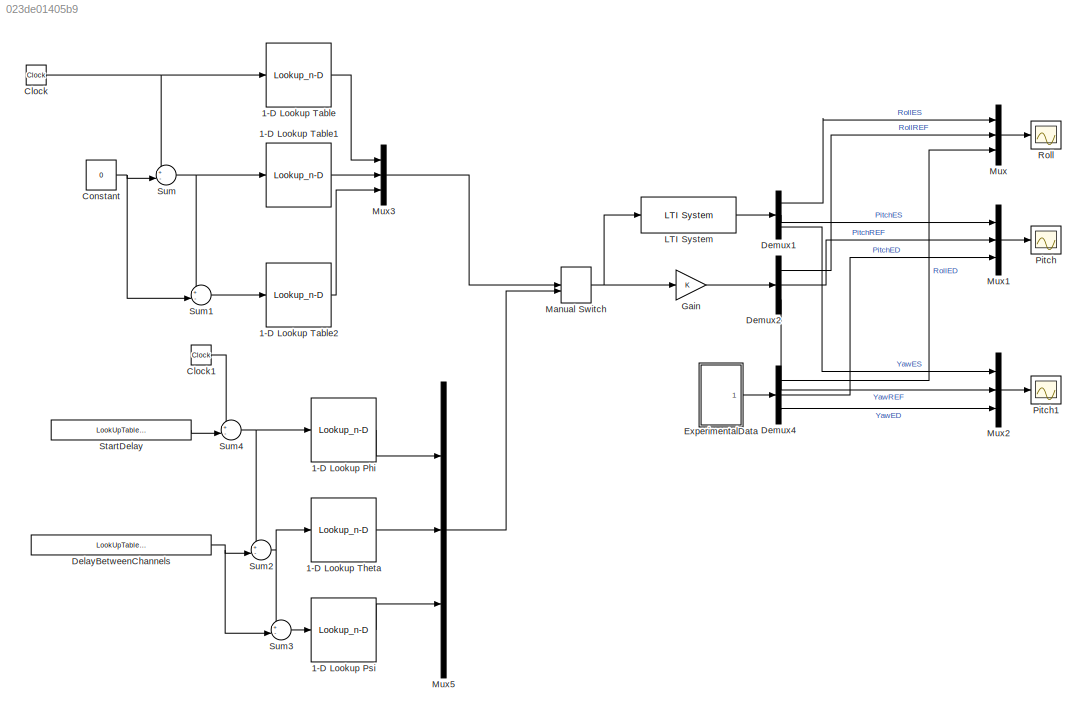
MODEL slx_023de01405b9
KIND model
CONFIG AbsTol = auto
CONFIG EnableMultiTasking = off
CONFIG FixedStep = .001
CONFIG MaxStep = auto
CONFIG MinStep = auto
CONFIG RelTol = 1e-3
CONFIG SampleTimeConstraint = Unconstrained
CONFIG Solver = ode5
CONFIG SolverName = ode5
CONFIG StartTime = 0.0
CONFIG StopTime = 20
BLOCK [Lookup_n-D] 1-D Lookup Phi
  BreakpointsForDimension1 = [0:length(TimeRPY)-1+20+20]*data.Ts
  ExtrapMethod = Cubic spline
  InternalRulePriority = Speed
  InterpMethod = Cubic spline
  NumberOfTableDimensions = 1
  Ports = [1, 1]
  RndMeth = Simplest
  Table = [zeros(20,1);data.InputData(:,1);zeros(20,1)]
BLOCK [Lookup_n-D] 1-D Lookup Psi
  BreakpointsForDimension1 = [0:length(TimeRPY)-1+20+20]*data.Ts
  ExtrapMethod = Cubic spline
  InternalRulePriority = Speed
  InterpMethod = Cubic spline
  NumberOfTableDimensions = 1
  Ports = [1, 1]
  RndMeth = Simplest
  Table = [data.InputData(1,3)*ones(20,1);data.InputData(:,3);data.InputData(end,3)*ones(20,1)]
BLOCK [Lookup_n-D] 1-D Lookup Table
  BreakpointsForDimension1 = [0:length(TimeRPY)-1+20+20]*data.Ts
  ExtrapMethod = Cubic spline
  InternalRulePriority = Speed
  InterpMethod = Cubic spline
  NumberOfTableDimensions = 1
  Ports = [1, 1]
  RndMeth = Simplest
  Table = [zeros(20,1);data.InputData(:,1);zeros(20,1)]
BLOCK [Lookup_n-D] 1-D Lookup Table1
  BreakpointsForDimension1 = [0:length(TimeRPY)-1+20+20]*data.Ts
  ExtrapMethod = Cubic spline
  InternalRulePriority = Speed
  InterpMethod = Cubic spline
  NumberOfTableDimensions = 1
  Ports = [1, 1]
  RndMeth = Simplest
  Table = [zeros(20,1);data.InputData(:,2);zeros(20,1)]
BLOCK [Lookup_n-D] 1-D Lookup Table2
  BreakpointsForDimension1 = [0:length(TimeRPY)-1+20+20]*data.Ts
  ExtrapMethod = Cubic spline
  InternalRulePriority = Speed
  InterpMethod = Cubic spline
  NumberOfTableDimensions = 1
  Ports = [1, 1]
  RndMeth = Simplest
  Table = [data.InputData(1,3)*ones(20,1);data.InputData(:,3);data.InputData(end,3)*ones(20,1)]
BLOCK [Lookup_n-D] 1-D Lookup Theta
  BreakpointsForDimension1 = [0:length(TimeRPY)-1+20+20]*data.Ts
  ExtrapMethod = Cubic spline
  InternalRulePriority = Speed
  InterpMethod = Cubic spline
  NumberOfTableDimensions = 1
  Ports = [1, 1]
  RndMeth = Simplest
  Table = [zeros(20,1);data.InputData(:,2);zeros(20,1)]
BLOCK [Clock] Clock
BLOCK [Clock] Clock1
BLOCK [Constant] Constant
  Value = 0
BLOCK [Constant] DelayBetweenChannels
  Value = LookUpTablesDelayBetweenChannels
BLOCK [Demux] Demux1
  DisplayOption = bar
  Outputs = 3
  Ports = [1, 3]
BLOCK [Demux] Demux2
  DisplayOption = bar
  Outputs = 3
  Ports = [1, 3]
BLOCK [Demux] Demux4
  DisplayOption = bar
  Outputs = 3
  Ports = [1, 3]
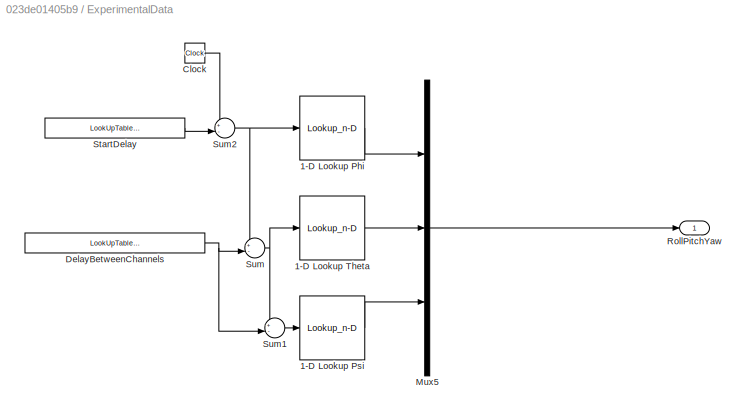
BLOCK [SubSystem] ExperimentalData
  Ports = [0, 1]
  RequestExecContextInheritance = off
  Variant = off
BLOCK [Lookup_n-D] ExperimentalData/1-D Lookup Phi
  BreakpointsForDimension1 = [0:length(TimeRPY)-1+20+20]*data.Ts
  ExtrapMethod = Cubic spline
  InternalRulePriority = Speed
  InterpMethod = Cubic spline
  NumberOfTableDimensions = 1
  Ports = [1, 1]
  RndMeth = Simplest
  Table = [zeros(20,1);data.OutputData(:,1);zeros(20,1)]
BLOCK [Lookup_n-D] ExperimentalData/1-D Lookup Psi
  BreakpointsForDimension1 = [0:length(TimeRPY)-1+20+20]*data.Ts
  ExtrapMethod = Cubic spline
  InternalRulePriority = Speed
  InterpMethod = Cubic spline
  NumberOfTableDimensions = 1
  Ports = [1, 1]
  RndMeth = Simplest
  Table = [data.InputData(1,3)*ones(20,1);data.OutputData(:,3);data.InputData(end,3)*ones(20,1)]
BLOCK [Lookup_n-D] ExperimentalData/1-D Lookup Theta
  BreakpointsForDimension1 = [0:length(TimeRPY)-1+20+20]*data.Ts
  ExtrapMethod = Cubic spline
  InternalRulePriority = Speed
  InterpMethod = Cubic spline
  NumberOfTableDimensions = 1
  Ports = [1, 1]
  RndMeth = Simplest
  Table = [zeros(20,1);data.OutputData(:,2);zeros(20,1)]
BLOCK [Clock] ExperimentalData/Clock
BLOCK [Constant] ExperimentalData/DelayBetweenChannels
  Value = LookUpTablesDelayBetweenChannels
BLOCK [Mux] ExperimentalData/Mux5
  DisplayOption = bar
  Inputs = 3
  Ports = [3, 1]
BLOCK [Outport] ExperimentalData/RollPitchYaw
  IconDisplay = Port number
BLOCK [Constant] ExperimentalData/StartDelay
  Value = LookUpTablesStartDelay
BLOCK [Sum] ExperimentalData/Sum
  IconShape = round
  InputSameDT = off
  Inputs = +-|
  OutDataTypeStr = Inherit: Inherit via internal rule
  Ports = [2, 1]
  SaturateOnIntegerOverflow = off
BLOCK [Sum] ExperimentalData/Sum1
  IconShape = round
  InputSameDT = off
  Inputs = +-|
  OutDataTypeStr = Inherit: Inherit via internal rule
  Ports = [2, 1]
  SaturateOnIntegerOverflow = off
BLOCK [Sum] ExperimentalData/Sum2
  IconShape = round
  InputSameDT = off
  Inputs = +-|
  OutDataTypeStr = Inherit: Inherit via internal rule
  Ports = [2, 1]
  SaturateOnIntegerOverflow = off
BLOCK [Gain] Gain
  OutDataTypeStr = Inherit: Inherit via internal rule
  ParamDataTypeStr = Inherit: Inherit via internal rule
  SaturateOnIntegerOverflow = off
BLOCK [Reference] LTI System  REF=cstblocks/LTI System
  Ports = [1, 1]
  SourceBlock = cstblocks/LTI System
  SourceType = LTI Block
BLOCK [ManualSwitch] Manual Switch
  CurrentSetting = 0
BLOCK [Mux] Mux
  DisplayOption = bar
  Inputs = 3
  Ports = [3, 1]
BLOCK [Mux] Mux1
  DisplayOption = bar
  Inputs = 3
  Ports = [3, 1]
BLOCK [Mux] Mux2
  DisplayOption = bar
  Inputs = 3
  Ports = [3, 1]
BLOCK [Mux] Mux3
  DisplayOption = bar
  Inputs = 3
  Ports = [3, 1]
BLOCK [Mux] Mux5
  DisplayOption = bar
  Inputs = 3
  Ports = [3, 1]
BLOCK [Scope] Pitch
  NumInputPorts = 1
  Ports = [1]
  ScopeSpecificationString = Simulink.scopes.TimeScopeBlockCfg('CurrentConfiguration', extmgr.ConfigurationSet(extmgr.Configuration('Core','General UI',true,'FigureColor',[0.831372549019608 0.815686274509804 0.784313725490196]),extmgr.Configuration('Core','Source UI',true),extmgr.Configuration('Sources','WiredSimulink',true,'DataLoggingVariableName','ScopeData1','DataLoggingSaveFormat','Array','DataLoggingDecimation','1','Dat...<+2829ch>
BLOCK [Scope] Pitch1
  NumInputPorts = 1
  Ports = [1]
  ScopeSpecificationString = Simulink.scopes.TimeScopeBlockCfg('CurrentConfiguration', extmgr.ConfigurationSet(extmgr.Configuration('Core','General UI',true,'FigureColor',[0.831372549019608 0.815686274509804 0.784313725490196]),extmgr.Configuration('Core','Source UI',true),extmgr.Configuration('Sources','WiredSimulink',true,'DataLoggingVariableName','ScopeData3','DataLoggingSaveFormat','Array','DataLoggingDecimation','1','Dat...<+2821ch>
BLOCK [Scope] Roll
  NumInputPorts = 1
  Ports = [1]
  ScopeSpecificationString = Simulink.scopes.TimeScopeBlockCfg('CurrentConfiguration', extmgr.ConfigurationSet(extmgr.Configuration('Core','General UI',true,'FigureColor',[0.831372549019608 0.815686274509804 0.784313725490196]),extmgr.Configuration('Core','Source UI',true),extmgr.Configuration('Sources','WiredSimulink',true,'DataLoggingVariableName','ScopeData2','DataLoggingSaveFormat','Array','DataLoggingDecimation','1','Dat...<+2797ch>
BLOCK [Constant] StartDelay
  Value = LookUpTablesStartDelay
BLOCK [Sum] Sum
  IconShape = round
  InputSameDT = off
  Inputs = +-|
  OutDataTypeStr = Inherit: Inherit via internal rule
  Ports = [2, 1]
  SaturateOnIntegerOverflow = off
BLOCK [Sum] Sum1
  IconShape = round
  InputSameDT = off
  Inputs = +-|
  OutDataTypeStr = Inherit: Inherit via internal rule
  Ports = [2, 1]
  SaturateOnIntegerOverflow = off
BLOCK [Sum] Sum2
  IconShape = round
  InputSameDT = off
  Inputs = +-|
  OutDataTypeStr = Inherit: Inherit via internal rule
  Ports = [2, 1]
  SaturateOnIntegerOverflow = off
BLOCK [Sum] Sum3
  IconShape = round
  InputSameDT = off
  Inputs = +-|
  OutDataTypeStr = Inherit: Inherit via internal rule
  Ports = [2, 1]
  SaturateOnIntegerOverflow = off
BLOCK [Sum] Sum4
  IconShape = round
  InputSameDT = off
  Inputs = +-|
  OutDataTypeStr = Inherit: Inherit via internal rule
  Ports = [2, 1]
  SaturateOnIntegerOverflow = off
LINE 1-D Lookup Phi:1 -> Mux5:1
LINE 1-D Lookup Psi:1 -> Mux5:3
LINE 1-D Lookup Table1:1 -> Mux3:2
LINE 1-D Lookup Table2:1 -> Mux3:3
LINE 1-D Lookup Table:1 -> Mux3:1
LINE 1-D Lookup Theta:1 -> Mux5:2
LINE Clock1:1 -> Sum4:1
NET Clock:1 -> 1-D Lookup Table:1, Sum:1
NET Constant:1 -> Sum1:2, Sum:2
NET DelayBetweenChannels:1 -> Sum2:2, Sum3:2
LINE Demux1:1 -> Mux:1
LINE Demux1:2 -> Mux1:1
LINE Demux1:3 -> Mux2:1
LINE Demux2:1 -> Mux:2
LINE Demux2:2 -> Mux1:2
LINE Demux2:3 -> Mux2:2
LINE Demux4:1 -> Mux:3
LINE Demux4:2 -> Mux1:3
LINE Demux4:3 -> Mux2:3
LINE ExperimentalData/1-D Lookup Phi:1 -> ExperimentalData/Mux5:1
LINE ExperimentalData/1-D Lookup Psi:1 -> ExperimentalData/Mux5:3
LINE ExperimentalData/1-D Lookup Theta:1 -> ExperimentalData/Mux5:2
LINE ExperimentalData/Clock:1 -> ExperimentalData/Sum2:1
NET ExperimentalData/DelayBetweenChannels:1 -> ExperimentalData/Sum1:2, ExperimentalData/Sum:2
LINE ExperimentalData/Mux5:1 -> ExperimentalData/RollPitchYaw:1
LINE ExperimentalData/StartDelay:1 -> ExperimentalData/Sum2:2
LINE ExperimentalData/Sum1:1 -> ExperimentalData/1-D Lookup Psi:1
NET ExperimentalData/Sum2:1 -> ExperimentalData/1-D Lookup Phi:1, ExperimentalData/Sum:1
NET ExperimentalData/Sum:1 -> ExperimentalData/1-D Lookup Theta:1, ExperimentalData/Sum1:1
LINE ExperimentalData:1 -> Demux4:1
LINE Gain:1 -> Demux2:1
LINE LTI System:1 -> Demux1:1
NET Manual Switch:1 -> Gain:1, LTI System:1
LINE Mux1:1 -> Pitch:1
LINE Mux2:1 -> Pitch1:1
LINE Mux3:1 -> Manual Switch:1
LINE Mux5:1 -> Manual Switch:2
LINE Mux:1 -> Roll:1
LINE StartDelay:1 -> Sum4:2
LINE Sum1:1 -> 1-D Lookup Table2:1
NET Sum2:1 -> 1-D Lookup Theta:1, Sum3:1
LINE Sum3:1 -> 1-D Lookup Psi:1
NET Sum4:1 -> 1-D Lookup Phi:1, Sum2:1
NET Sum:1 -> 1-D Lookup Table1:1, Sum1:1
note: NET lines group one-source signal fan-out (src -> all destinations, sorted); 1:1 wires keep LINE
